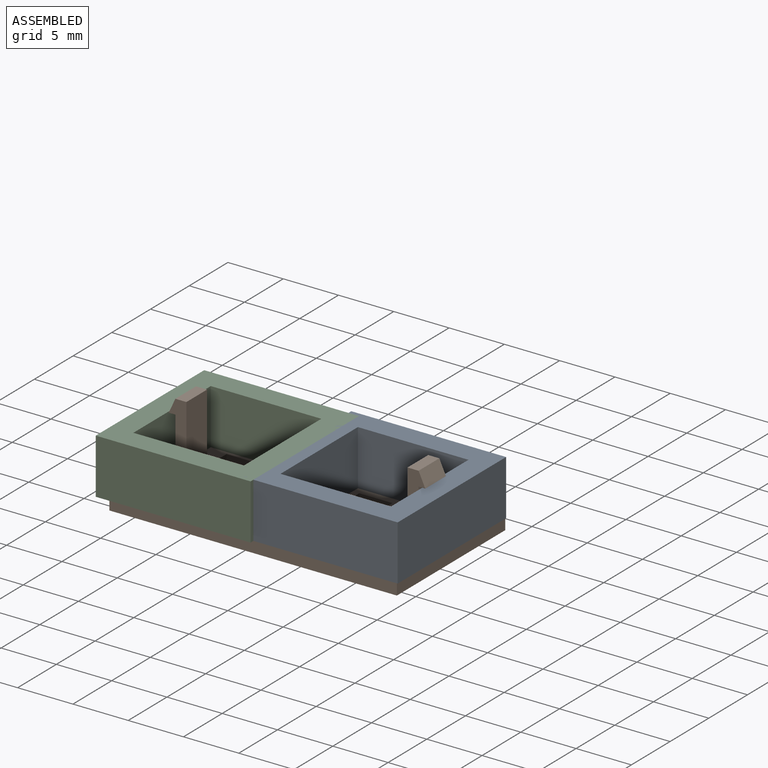
[diagram: assembled view]
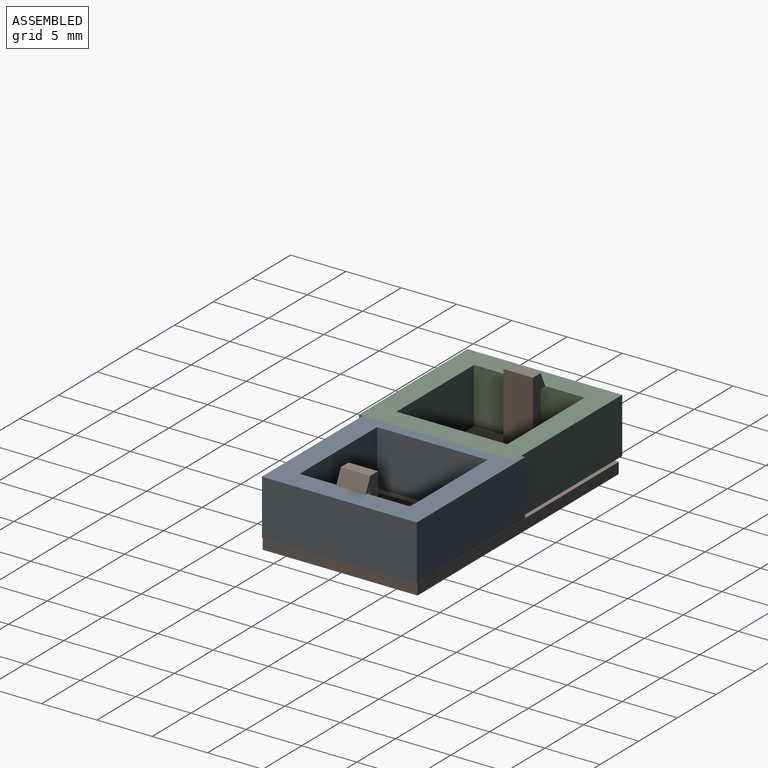
[diagram: assembled view, second angle]
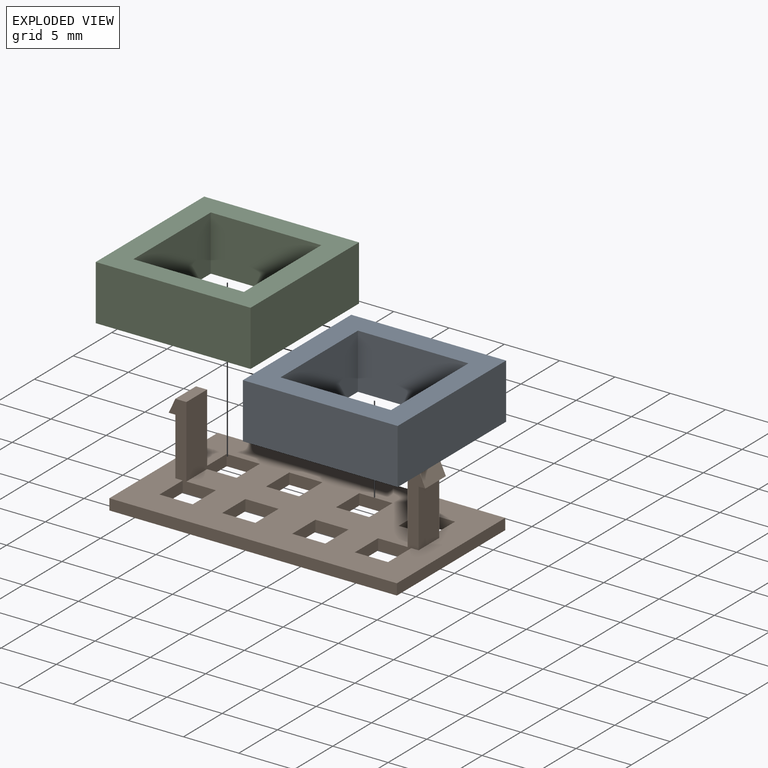
[diagram: exploded view]
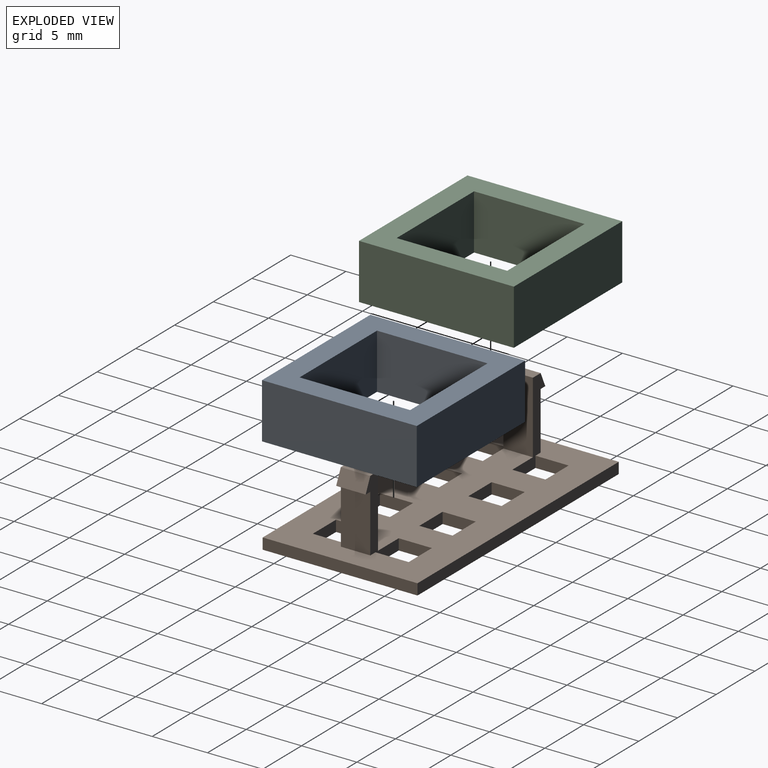
[diagram: exploded view, second angle]
ASSEMBLY  parts=3 mates=2
PART A: 10 faces, bbox 14x14x5 mm
  f0: plane 14x5mm, normal (0,-1,0), area 70mm2, adj f1,f7,f8,f9
  f1: plane 14x5mm, normal (1,0,0), area 70mm2, adj f0,f2,f8,f9
  f2: plane 14x5mm, normal (0,1,0), area 70mm2, adj f1,f7,f8,f9
  f3: plane 10x5mm, normal (-1,0,0), area 50mm2, adj f4,f6,f8,f9
  f4: plane 10x5mm, normal (0,1,0), area 50mm2, adj f3,f5,f8,f9
  f5: plane 10x5mm, normal (1,0,0), area 50mm2, adj f4,f6,f8,f9
  f6: plane 10x5mm, normal (0,-1,0), area 50mm2, adj f3,f5,f8,f9
  f7: plane 14x5mm, normal (-1,0,0), area 70mm2, adj f0,f2,f8,f9
  f8: plane 14x14mm, normal (0,0,1), area 96mm2, adj f0,f1,f2,f3,f4,f5,f6,f7
  f9: plane 14x14mm, normal (0,0,-1), area 96mm2, adj f0,f1,f2,f3,f4,f5,f6,f7
PART B: 50 faces, bbox 26x14x7.5 mm
  f0: plane 5.2x2.67mm, normal (1,0,0), area 13.9mm2, adj f1,f5,f6,f7
  f1: plane 2.67x0.6mm, normal (0,0,-1), area 1.6mm2, adj f0,f2,f5,f6
  f2: plane 2.67x1.3mm, normal (0.91,0,0.42), area 3.8mm2, adj f1,f3,f5,f6
  f3: plane 2.67x1mm, normal (0,0,1), area 2.7mm2, adj f2,f4,f5,f6
  f4: plane 6.5x2.67mm, normal (-1,0,0), area 17.3mm2, adj f3,f5,f6,f7
  f5: plane 6.5x1.6mm, normal (0,1,0), area 6.9mm2, adj f0,f1,f2,f3,f4,f7,f22
  f6: plane 7.5x4.27mm, normal (0,-1,0), area 9.9mm2, adj f0,f1,f2,f3,f4,f7,f8,f9
  f7: plane 26x14mm, normal (0,0,1), area 286.7mm2, adj f0,f4,f5,f6,f8,f9,f10,f11
  f8: plane 3x1mm, normal (1,0,0), area 3mm2, adj f6,f7,f25,f26
  f9: plane 3x1mm, normal (-1,0,0), area 3mm2, adj f6,f7,f25,f26
  f10: plane 3x1mm, normal (1,0,0), area 3mm2, adj f7,f11,f21,f26
  f11: plane 3x1mm, normal (0,-1,0), area 3mm2, adj f7,f10,f12,f26
  f12: plane 3x1mm, normal (-1,0,0), area 3mm2, adj f7,f11,f21,f26
  f13: plane 3x1mm, normal (1,0,0), area 3mm2, adj f7,f14,f22,f26
  f14: plane 3x1mm, normal (0,-1,0), area 3mm2, adj f7,f13,f15,f26
  f15: plane 3x1mm, normal (-1,0,0), area 3mm2, adj f7,f14,f22,f26
  f16: plane 3x1mm, normal (0,1,0), area 3mm2, adj f7,f17,f23,f26
  f17: plane 3x1mm, normal (1,0,0), area 3mm2, adj f7,f16,f18,f26
  f18: plane 3x1mm, normal (0,-1,0), area 3mm2, adj f7,f17,f23,f26
  f19: plane 26x1mm, normal (0,-1,0), area 26mm2, adj f7,f20,f26,f45
  f20: plane 14x1mm, normal (1,0,0), area 14mm2, adj f7,f19,f24,f26
  f21: plane 3x1mm, normal (0,1,0), area 3mm2, adj f7,f10,f12,f26
  f22: plane 3x1mm, normal (0,1,0), area 3mm2, adj f5,f7,f13,f15,f26
  f23: plane 3x1mm, normal (-1,0,0), area 3mm2, adj f7,f16,f18,f26
  f24: plane 26x1mm, normal (0,1,0), area 26mm2, adj f7,f20,f26,f45
  f25: plane 3x1mm, normal (0,1,0), area 3mm2, adj f7,f8,f9,f26
  f26: plane 26x14mm, normal (0,0,-1), area 292mm2, adj f6,f8,f9,f10,f11,f12,f13,f14
  f27: plane 5.2x2.67mm, normal (-1,0,0), area 13.9mm2, adj f7,f28,f32,f33
  f28: plane 2.67x0.6mm, normal (0,0,-1), area 1.6mm2, adj f27,f29,f32,f33
  f29: plane 2.67x1.3mm, normal (-0.91,0,0.42), area 3.8mm2, adj f28,f30,f32,f33
  f30: plane 2.67x1mm, normal (0,0,1), area 2.7mm2, adj f29,f31,f32,f33
  f31: plane 6.5x2.67mm, normal (1,0,0), area 17.3mm2, adj f7,f30,f32,f33
  f32: plane 6.5x1.6mm, normal (0,1,0), area 6.9mm2, adj f7,f27,f28,f29,f30,f31,f47
  f33: plane 7.5x4.27mm, normal (0,-1,0), area 9.9mm2, adj f7,f26,f27,f28,f29,f30,f31,f34
  f34: plane 3x1mm, normal (-1,0,0), area 3mm2, adj f7,f26,f33,f49
  f35: plane 3x1mm, normal (1,0,0), area 3mm2, adj f7,f26,f33,f49
  f36: plane 3x1mm, normal (-1,0,0), area 3mm2, adj f7,f26,f37,f46
  f37: plane 3x1mm, normal (0,-1,0), area 3mm2, adj f7,f26,f36,f38
  f38: plane 3x1mm, normal (1,0,0), area 3mm2, adj f7,f26,f37,f46
  f39: plane 3x1mm, normal (-1,0,0), area 3mm2, adj f7,f26,f40,f47
  f40: plane 3x1mm, normal (0,-1,0), area 3mm2, adj f7,f26,f39,f41
  f41: plane 3x1mm, normal (1,0,0), area 3mm2, adj f7,f26,f40,f47
  f42: plane 3x1mm, normal (0,1,0), area 3mm2, adj f7,f26,f43,f48
  f43: plane 3x1mm, normal (-1,0,0), area 3mm2, adj f7,f26,f42,f44
  f44: plane 3x1mm, normal (0,-1,0), area 3mm2, adj f7,f26,f43,f48
  f45: plane 14x1mm, normal (-1,0,0), area 14mm2, adj f7,f19,f24,f26
  f46: plane 3x1mm, normal (0,1,0), area 3mm2, adj f7,f26,f36,f38
  f47: plane 3x1mm, normal (0,1,0), area 3mm2, adj f7,f26,f32,f39,f41
  f48: plane 3x1mm, normal (1,0,0), area 3mm2, adj f7,f26,f42,f44
  f49: plane 3x1mm, normal (0,1,0), area 3mm2, adj f7,f26,f34,f35
PART C: same geometry as A
PLACE A t=(-7.59,0.51,-6.83)mm
PLACE B t=(-5.67,-1.48,-6.83)mm
PLACE C t=(-20.64,0.15,-6.83)mm
MATE planar B.f7 <-> C.f9  axis (0,0,1) through (-18.67,5.52,-6.83)mm
MATE planar A.f9 <-> B.f7  axis (0,0,-1) through (-12.59,5.51,-6.83)mm
